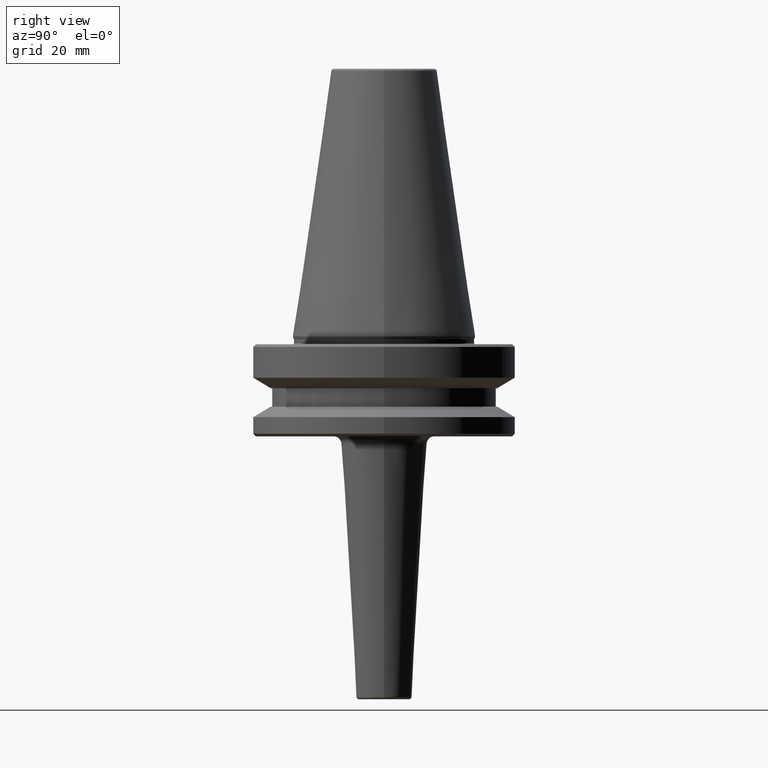
[diagram: clean part render]
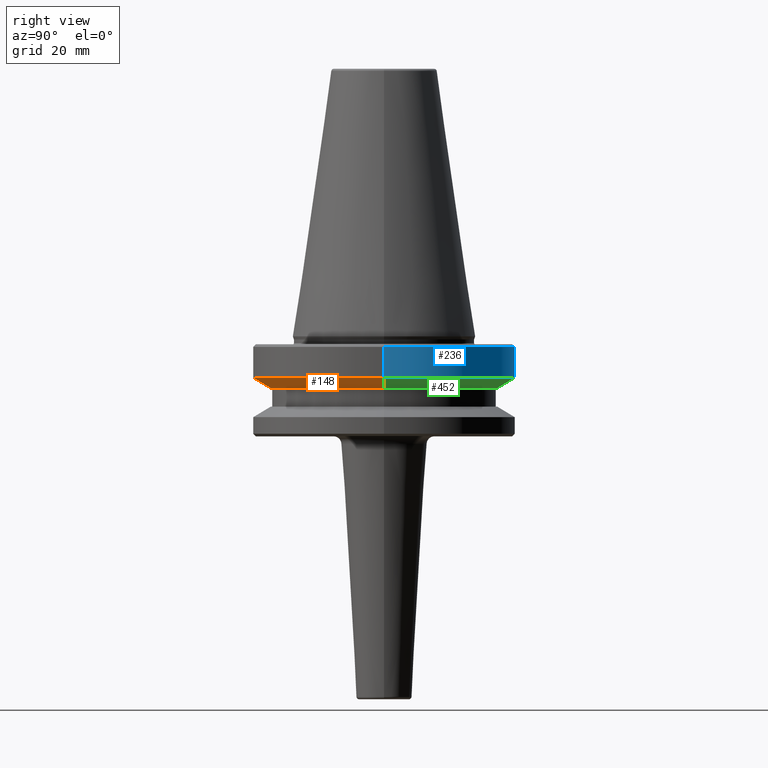
[diagram: same view with three faces highlighted in distinct colors, each labeled with its STEP entity id]
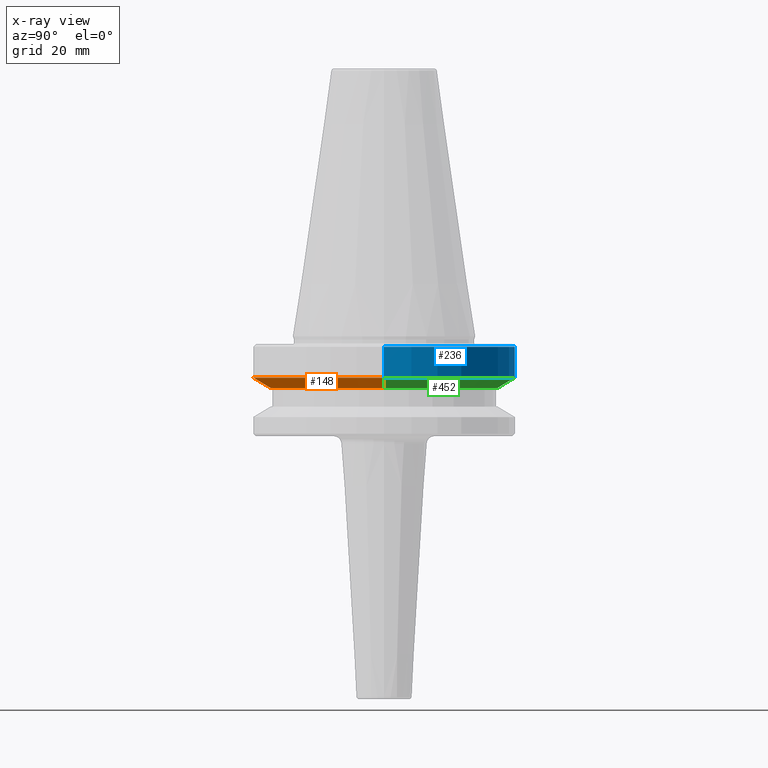
[diagram: x-ray of the same camera — body ghosted, the three highlighted faces saturated]
A machine part, right view with three faces highlighted in distinct colors.
The next image is the same camera in x-ray (body ghosted, the three faces saturated) — at least one of them is partly hidden behind the body in this view.
Their STEP definitions:

[orange] entity #148 — the highlighted conical surface has half-angle 60 deg.
#63 = AXIS2_PLACEMENT_3D ( 'NONE', #170, #548, #917 ) ;
#65 = LINE ( 'NONE', #498, #673 ) ;
#68 = CARTESIAN_POINT ( 'NONE',  ( 0.0000000000000000000, 0.0000000000000000000, -19.70000000000001000 ) ) ;
#97 = AXIS2_PLACEMENT_3D ( 'NONE', #175, #703, #785 ) ;
#144 = AXIS2_PLACEMENT_3D ( 'NONE', #68, #362, #923 ) ;
#148 = ADVANCED_FACE ( 'NONE', ( #343 ), #695, .T. ) ;
#153 = CIRCLE ( 'NONE', #63, 50.00000000000000000 ) ;
#166 = LINE ( 'NONE', #199, #541 ) ;
#170 = CARTESIAN_POINT ( 'NONE',  ( 0.0000000000000000000, 0.0000000000000000000, -15.70022000322675400 ) ) ;
#175 = CARTESIAN_POINT ( 'NONE',  ( 0.0000000000000000000, 0.0000000000000000000, -19.70000000000001000 ) ) ;
#199 = CARTESIAN_POINT ( 'NONE',  ( 43.07217782649103600, 0.0000000000000000000, -19.70000000000001000 ) ) ;
#213 = EDGE_CURVE ( 'NONE', #897, #332, #153, .T. ) ;
#285 = ORIENTED_EDGE ( 'NONE', *, *, #501, .F. ) ;
#324 = ORIENTED_EDGE ( 'NONE', *, *, #213, .F. ) ;
#332 = VERTEX_POINT ( 'NONE', #526 ) ;
#343 = FACE_OUTER_BOUND ( 'NONE', #770, .T. ) ;
#362 = DIRECTION ( 'NONE',  ( -0.0000000000000000000, -0.0000000000000000000, 1.000000000000000000 ) ) ;
#419 = DIRECTION ( 'NONE',  ( 0.8660254037844388200, 0.0000000000000000000, 0.4999999999999997200 ) ) ;
#432 = DIRECTION ( 'NONE',  ( -0.8660254037844388200, 1.060575238724907200E-016, 0.4999999999999997200 ) ) ;
#498 = CARTESIAN_POINT ( 'NONE',  ( -43.07217782649103600, 5.274820470751785100E-015, -19.70000000000001000 ) ) ;
#501 = EDGE_CURVE ( 'NONE', #595, #897, #65, .T. ) ;
#516 = CARTESIAN_POINT ( 'NONE',  ( -43.07217782649103600, 5.699027233244276000E-015, -19.70000000000001000 ) ) ;
#526 = CARTESIAN_POINT ( 'NONE',  ( 50.00000000000000000, 0.0000000000000000000, -15.70022000322675400 ) ) ;
#541 = VECTOR ( 'NONE', #419, 1000.000000000000000 ) ;
#548 = DIRECTION ( 'NONE',  ( -0.0000000000000000000, -0.0000000000000000000, 1.000000000000000000 ) ) ;
#562 = CARTESIAN_POINT ( 'NONE',  ( -50.00000000000000000, 6.123233995736766900E-015, -15.70022000322675400 ) ) ;
#595 = VERTEX_POINT ( 'NONE', #516 ) ;
#673 = VECTOR ( 'NONE', #432, 1000.000000000000000 ) ;
#676 = ORIENTED_EDGE ( 'NONE', *, *, #994, .T. ) ;
#695 = CONICAL_SURFACE ( 'NONE', #144, 43.07217782649103600, 1.047197551196598100 ) ;
#703 = DIRECTION ( 'NONE',  ( -0.0000000000000000000, -0.0000000000000000000, 1.000000000000000000 ) ) ;
#770 = EDGE_LOOP ( 'NONE', ( #285, #676, #882, #324 ) ) ;
#779 = CIRCLE ( 'NONE', #97, 43.07217782649103600 ) ;
#785 = DIRECTION ( 'NONE',  ( 1.000000000000000000, 0.0000000000000000000, 0.0000000000000000000 ) ) ;
#812 = CARTESIAN_POINT ( 'NONE',  ( 43.07217782649103600, 0.0000000000000000000, -19.70000000000001000 ) ) ;
#837 = EDGE_CURVE ( 'NONE', #847, #332, #166, .T. ) ;
#847 = VERTEX_POINT ( 'NONE', #812 ) ;
#882 = ORIENTED_EDGE ( 'NONE', *, *, #837, .T. ) ;
#897 = VERTEX_POINT ( 'NONE', #562 ) ;
#917 = DIRECTION ( 'NONE',  ( 1.000000000000000000, 0.0000000000000000000, 0.0000000000000000000 ) ) ;
#923 = DIRECTION ( 'NONE',  ( 1.000000000000000000, 0.0000000000000000000, 0.0000000000000000000 ) ) ;
#994 = EDGE_CURVE ( 'NONE', #595, #847, #779, .T. ) ;

[blue] entity #236 — the highlighted cylindrical surface (partial cylindrical patch) has radius 50 mm, axis along (-0, -0, 1).
#6 = CARTESIAN_POINT ( 'NONE',  ( 0.0000000000000000000, 0.0000000000000000000, -3.999999999999989800 ) ) ;
#7 = DIRECTION ( 'NONE',  ( 1.000000000000000000, 0.0000000000000000000, 0.0000000000000000000 ) ) ;
#76 = CIRCLE ( 'NONE', #733, 50.00000000000000000 ) ;
#83 = EDGE_CURVE ( 'NONE', #332, #810, #395, .T. ) ;
#147 = ORIENTED_EDGE ( 'NONE', *, *, #390, .T. ) ;
#174 = LINE ( 'NONE', #911, #387 ) ;
#191 = EDGE_LOOP ( 'NONE', ( #701, #147, #406, #344 ) ) ;
#236 = ADVANCED_FACE ( 'NONE', ( #352 ), #910, .T. ) ;
#257 = CARTESIAN_POINT ( 'NONE',  ( 50.00000000000000000, 0.0000000000000000000, 124.5046326327850600 ) ) ;
#281 = DIRECTION ( 'NONE',  ( -0.0000000000000000000, -0.0000000000000000000, 1.000000000000000000 ) ) ;
#309 = DIRECTION ( 'NONE',  ( -0.0000000000000000000, -0.0000000000000000000, 1.000000000000000000 ) ) ;
#332 = VERTEX_POINT ( 'NONE', #526 ) ;
#335 = EDGE_CURVE ( 'NONE', #810, #816, #76, .T. ) ;
#338 = AXIS2_PLACEMENT_3D ( 'NONE', #609, #281, #762 ) ;
#344 = ORIENTED_EDGE ( 'NONE', *, *, #83, .F. ) ;
#352 = FACE_OUTER_BOUND ( 'NONE', #191, .T. ) ;
#387 = VECTOR ( 'NONE', #309, 1000.000000000000000 ) ;
#390 = EDGE_CURVE ( 'NONE', #897, #816, #174, .T. ) ;
#395 = LINE ( 'NONE', #257, #625 ) ;
#406 = ORIENTED_EDGE ( 'NONE', *, *, #335, .F. ) ;
#426 = DIRECTION ( 'NONE',  ( -0.0000000000000000000, -0.0000000000000000000, 1.000000000000000000 ) ) ;
#488 = EDGE_CURVE ( 'NONE', #332, #897, #859, .T. ) ;
#526 = CARTESIAN_POINT ( 'NONE',  ( 50.00000000000000000, 0.0000000000000000000, -15.70022000322675400 ) ) ;
#552 = DIRECTION ( 'NONE',  ( -0.0000000000000000000, -0.0000000000000000000, 1.000000000000000000 ) ) ;
#562 = CARTESIAN_POINT ( 'NONE',  ( -50.00000000000000000, 6.123233995736766900E-015, -15.70022000322675400 ) ) ;
#569 = CARTESIAN_POINT ( 'NONE',  ( 0.0000000000000000000, 0.0000000000000000000, -15.70022000322675400 ) ) ;
#609 = CARTESIAN_POINT ( 'NONE',  ( 0.0000000000000000000, 0.0000000000000000000, 124.5046326327850600 ) ) ;
#625 = VECTOR ( 'NONE', #700, 1000.000000000000000 ) ;
#700 = DIRECTION ( 'NONE',  ( -0.0000000000000000000, -0.0000000000000000000, 1.000000000000000000 ) ) ;
#701 = ORIENTED_EDGE ( 'NONE', *, *, #488, .T. ) ;
#733 = AXIS2_PLACEMENT_3D ( 'NONE', #6, #552, #919 ) ;
#762 = DIRECTION ( 'NONE',  ( 1.000000000000000000, 0.0000000000000000000, 0.0000000000000000000 ) ) ;
#797 = CARTESIAN_POINT ( 'NONE',  ( 50.00000000000000000, 0.0000000000000000000, -3.999999999999989800 ) ) ;
#810 = VERTEX_POINT ( 'NONE', #797 ) ;
#816 = VERTEX_POINT ( 'NONE', #932 ) ;
#859 = CIRCLE ( 'NONE', #970, 50.00000000000000000 ) ;
#897 = VERTEX_POINT ( 'NONE', #562 ) ;
#910 = CYLINDRICAL_SURFACE ( 'NONE', #338, 50.00000000000000000 ) ;
#911 = CARTESIAN_POINT ( 'NONE',  ( -50.00000000000000000, 6.123233995736766100E-015, 124.5046326327850600 ) ) ;
#919 = DIRECTION ( 'NONE',  ( 1.000000000000000000, 0.0000000000000000000, 0.0000000000000000000 ) ) ;
#932 = CARTESIAN_POINT ( 'NONE',  ( -50.00000000000000000, 6.123233995736766100E-015, -3.999999999999989800 ) ) ;
#970 = AXIS2_PLACEMENT_3D ( 'NONE', #569, #426, #7 ) ;

[green] entity #452 — the highlighted conical surface has half-angle 60 deg.
#7 = DIRECTION ( 'NONE',  ( 1.000000000000000000, 0.0000000000000000000, 0.0000000000000000000 ) ) ;
#65 = LINE ( 'NONE', #498, #673 ) ;
#154 = DIRECTION ( 'NONE',  ( -0.0000000000000000000, -0.0000000000000000000, 1.000000000000000000 ) ) ;
#166 = LINE ( 'NONE', #199, #541 ) ;
#167 = ORIENTED_EDGE ( 'NONE', *, *, #837, .F. ) ;
#199 = CARTESIAN_POINT ( 'NONE',  ( 43.07217782649103600, 0.0000000000000000000, -19.70000000000001000 ) ) ;
#265 = FACE_OUTER_BOUND ( 'NONE', #1003, .T. ) ;
#302 = DIRECTION ( 'NONE',  ( -0.0000000000000000000, -0.0000000000000000000, 1.000000000000000000 ) ) ;
#332 = VERTEX_POINT ( 'NONE', #526 ) ;
#369 = CARTESIAN_POINT ( 'NONE',  ( 0.0000000000000000000, 0.0000000000000000000, -19.70000000000001000 ) ) ;
#404 = EDGE_CURVE ( 'NONE', #847, #595, #612, .T. ) ;
#413 = AXIS2_PLACEMENT_3D ( 'NONE', #369, #302, #659 ) ;
#419 = DIRECTION ( 'NONE',  ( 0.8660254037844388200, 0.0000000000000000000, 0.4999999999999997200 ) ) ;
#426 = DIRECTION ( 'NONE',  ( -0.0000000000000000000, -0.0000000000000000000, 1.000000000000000000 ) ) ;
#432 = DIRECTION ( 'NONE',  ( -0.8660254037844388200, 1.060575238724907200E-016, 0.4999999999999997200 ) ) ;
#452 = ADVANCED_FACE ( 'NONE', ( #265 ), #691, .T. ) ;
#488 = EDGE_CURVE ( 'NONE', #332, #897, #859, .T. ) ;
#498 = CARTESIAN_POINT ( 'NONE',  ( -43.07217782649103600, 5.274820470751785100E-015, -19.70000000000001000 ) ) ;
#501 = EDGE_CURVE ( 'NONE', #595, #897, #65, .T. ) ;
#516 = CARTESIAN_POINT ( 'NONE',  ( -43.07217782649103600, 5.699027233244276000E-015, -19.70000000000001000 ) ) ;
#519 = ORIENTED_EDGE ( 'NONE', *, *, #501, .T. ) ;
#526 = CARTESIAN_POINT ( 'NONE',  ( 50.00000000000000000, 0.0000000000000000000, -15.70022000322675400 ) ) ;
#532 = DIRECTION ( 'NONE',  ( 1.000000000000000000, 0.0000000000000000000, 0.0000000000000000000 ) ) ;
#541 = VECTOR ( 'NONE', #419, 1000.000000000000000 ) ;
#547 = ORIENTED_EDGE ( 'NONE', *, *, #404, .T. ) ;
#562 = CARTESIAN_POINT ( 'NONE',  ( -50.00000000000000000, 6.123233995736766900E-015, -15.70022000322675400 ) ) ;
#569 = CARTESIAN_POINT ( 'NONE',  ( 0.0000000000000000000, 0.0000000000000000000, -15.70022000322675400 ) ) ;
#595 = VERTEX_POINT ( 'NONE', #516 ) ;
#612 = CIRCLE ( 'NONE', #891, 43.07217782649103600 ) ;
#659 = DIRECTION ( 'NONE',  ( 1.000000000000000000, 0.0000000000000000000, 0.0000000000000000000 ) ) ;
#673 = VECTOR ( 'NONE', #432, 1000.000000000000000 ) ;
#691 = CONICAL_SURFACE ( 'NONE', #413, 43.07217782649103600, 1.047197551196598100 ) ;
#716 = ORIENTED_EDGE ( 'NONE', *, *, #488, .F. ) ;
#812 = CARTESIAN_POINT ( 'NONE',  ( 43.07217782649103600, 0.0000000000000000000, -19.70000000000001000 ) ) ;
#837 = EDGE_CURVE ( 'NONE', #847, #332, #166, .T. ) ;
#847 = VERTEX_POINT ( 'NONE', #812 ) ;
#859 = CIRCLE ( 'NONE', #970, 50.00000000000000000 ) ;
#891 = AXIS2_PLACEMENT_3D ( 'NONE', #995, #154, #532 ) ;
#897 = VERTEX_POINT ( 'NONE', #562 ) ;
#970 = AXIS2_PLACEMENT_3D ( 'NONE', #569, #426, #7 ) ;
#995 = CARTESIAN_POINT ( 'NONE',  ( 0.0000000000000000000, 0.0000000000000000000, -19.70000000000001000 ) ) ;
#1003 = EDGE_LOOP ( 'NONE', ( #547, #519, #716, #167 ) ) ;